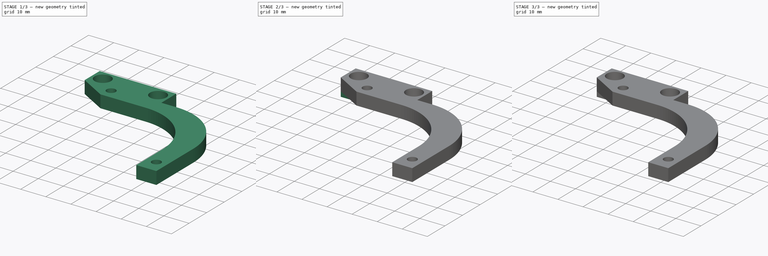
[diagram: build sequence overview — one tinted view per stage of 3, left to right]
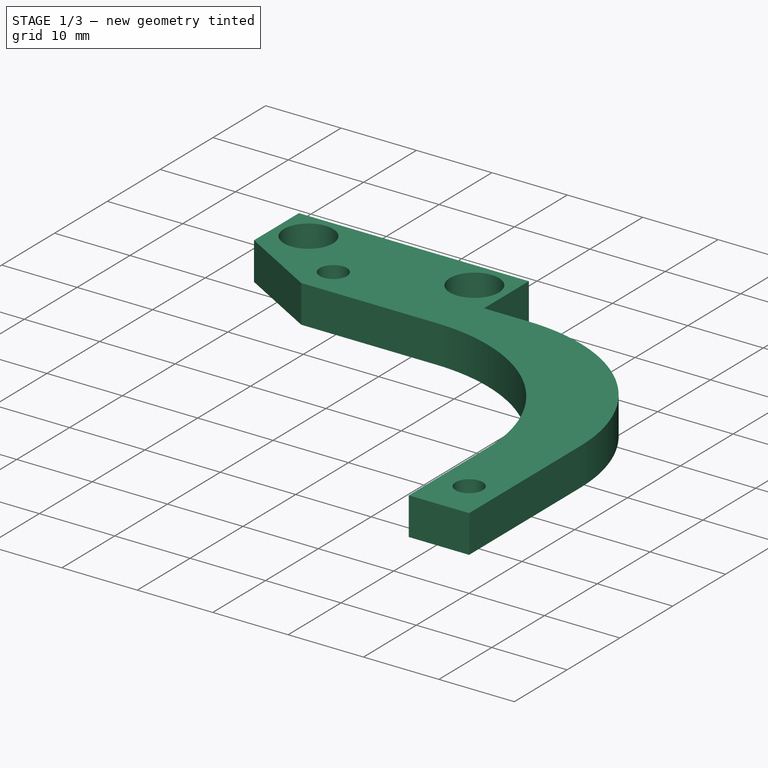
[diagram: stage 1 of 3 — iso view after this stage's code; geometry added in this stage tinted green]
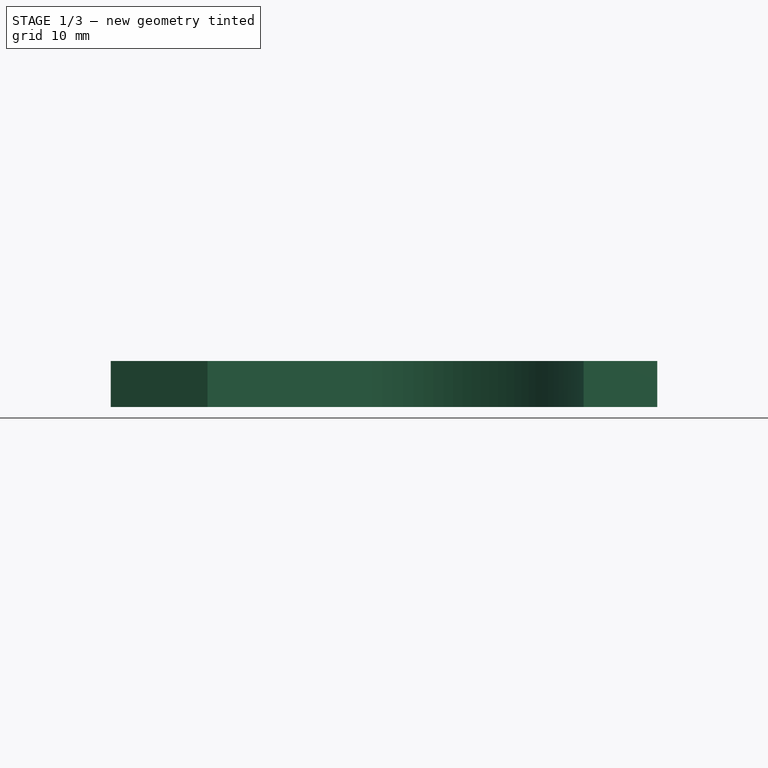
[diagram: stage 1 of 3 — front view after this stage's code; geometry added in this stage tinted green]
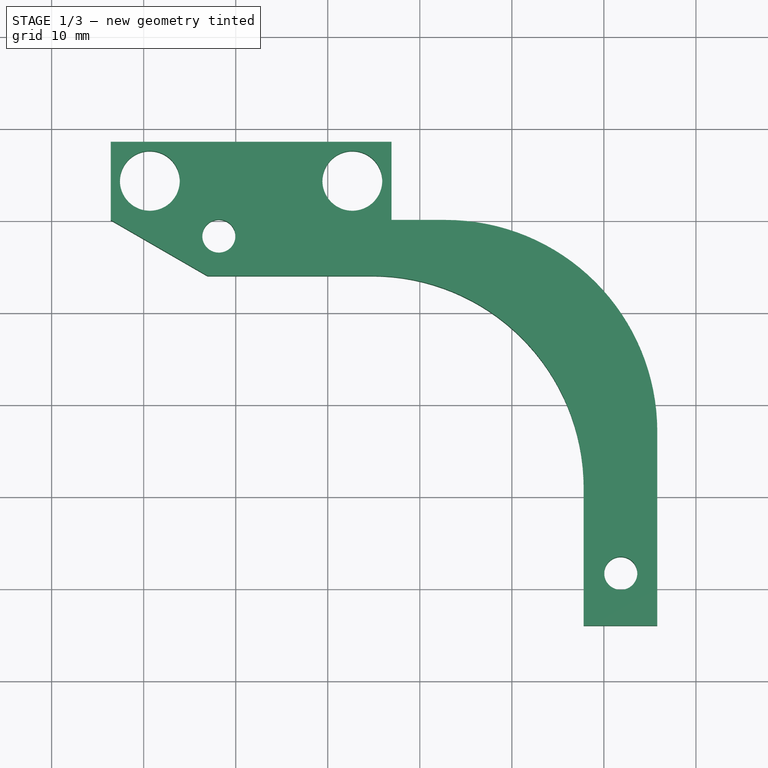
[diagram: stage 1 of 3 — top view after this stage's code; geometry added in this stage tinted green]
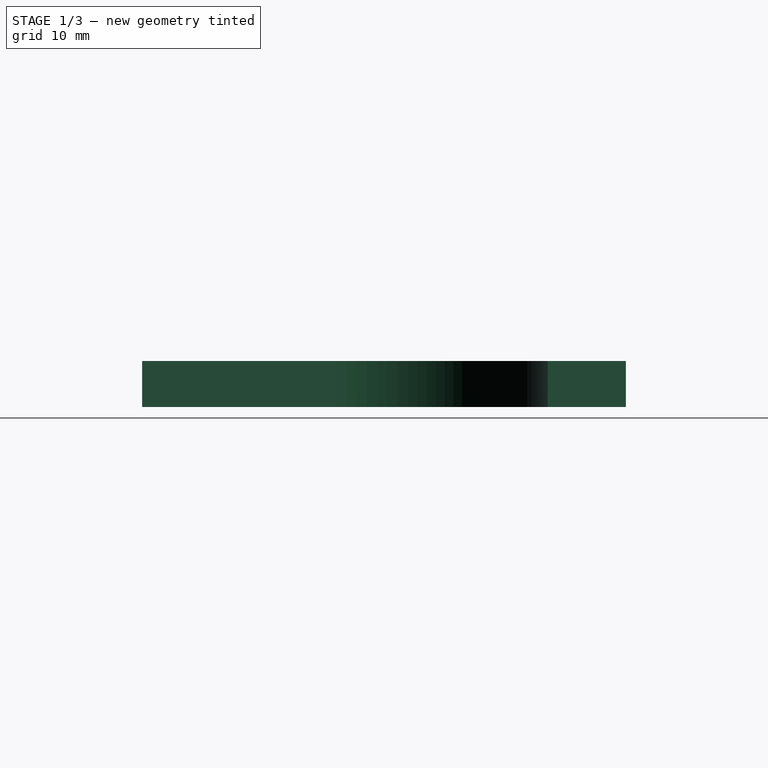
[diagram: stage 1 of 3 — right view after this stage's code; geometry added in this stage tinted green]
FCSTD DOCUMENT  (FreeCAD 0.16R)
Label: fanhold
License: All rights reserved
LicenseURL: http://en.wikipedia.org/wiki/All_rights_reserved
objects: Sketcher::SketchObject×5, PartDesign::Pocket×3, PartDesign::Pad×2, PartDesign::Fillet×1
note: 16 computed .brp shape members not serialized (recipe doc carries the construction recipe); baked Part::Feature solids carry a one-line shape summary decoded from their .brp

FEATURE [Sketcher::SketchObject] Sketch
  sketch-geometry (17):
    g0: LineSegment StartX=-33.5823 StartY=28.5694 StartZ=0 EndX=-3.08227 EndY=28.5694 EndZ=0
    g1: LineSegment StartX=-3.08227 StartY=28.5694 StartZ=0 EndX=-3.08227 EndY=20.0694 EndZ=0
    g2: LineSegment StartX=-33.5823 StartY=20.0694 StartZ=0 EndX=-33.5823 EndY=28.5694 EndZ=0
    g3: Circle [constr] CenterX=0 CenterY=0 CenterZ=0 NormalX=0 NormalY=0 NormalZ=1 Radius=28.5
    g4: LineSegment [constr] StartX=-21.8323 StartY=18.3194 StartZ=0 EndX=21.8323 EndY=-18.3194 EndZ=0
    g5: LineSegment [constr] StartX=-33.5823 StartY=24.3194 StartZ=0 EndX=-3.08227 EndY=24.3194 EndZ=0
    g6: Circle CenterX=-29.3323 CenterY=24.3194 CenterZ=0 NormalX=0 NormalY=0 NormalZ=1 Radius=3.25
    g7: Circle CenterX=-7.33227 CenterY=24.3194 CenterZ=0 NormalX=0 NormalY=0 NormalZ=1 Radius=3.25
    g8: LineSegment [constr] StartX=-18.3323 StartY=44.2943 StartZ=0 EndX=-18.3323 EndY=14.2081 EndZ=0
    g9: Circle CenterX=-21.8323 CenterY=18.3194 CenterZ=0 NormalX=0 NormalY=0 NormalZ=1 Radius=1.8
    g10: Circle CenterX=21.8323 CenterY=-18.3194 CenterZ=0 NormalX=0 NormalY=0 NormalZ=1 Radius=1.8
    g11: LineSegment StartX=-33.5823 StartY=20.0694 StartZ=0 EndX=-23.0697 EndY=14 EndZ=0
    g12: LineSegment StartX=-23.0697 StartY=14 StartZ=0 EndX=17.8 EndY=14 EndZ=0
    g13: LineSegment StartX=17.8 StartY=14 StartZ=0 EndX=17.8 EndY=-24 EndZ=0
    g14: LineSegment StartX=17.8 StartY=-24 StartZ=0 EndX=25.8 EndY=-24 EndZ=0
    g15: LineSegment StartX=25.8 StartY=-24 StartZ=0 EndX=25.8 EndY=20.0694 EndZ=0
    g16: LineSegment StartX=25.8 StartY=20.0694 StartZ=0 EndX=-3.08227 EndY=20.0694 EndZ=0
  constraints (48):
    c: Horizontal(g0)
    c: Coincident(g0,g1)
    c: Vertical(g1)
    c: Coincident(g2,g0)
    c: Vertical(g2)
    c: DistanceY(g2,g2) = 8.5
    c: Equal(g2,g1)
    c: DistanceX(g0,g0) = 30.5
    c: Coincident(g3,g-1)
    c: Radius(g3) = 28.5
    c: PointOnObject(g4,g3)
    c: PointOnObject(g4,g3)
    c: PointOnObject(g-1,g4)
    c: Angle(g4) = -0.698132
    c: PointOnObject(g5,g2)
    c: PointOnObject(g5,g1)
    c: Symmetric(g0,g1,g5)
    c: PointOnObject(g6,g5)
    c: PointOnObject(g7,g5)
    c: Distance(g6,g7) = 22
    c: Vertical(g8)
    c: Symmetric(g0,g0,g8)
    c: Symmetric(g6,g7,g8)
    c: Equal(g6,g7)
    c: Radius(g7) = 3.25
    c: DistanceX(g6,g4) = 7.5
    c: DistanceY(g4,g6) = 6
    c: Coincident(g9,g4)
    c: Radius(g9) = 1.8
    c: Coincident(g10,g4)
    c: Equal(g10,g9)
    c: Coincident(g2,g11)
    c: Coincident(g11,g12)
    c: Horizontal(g12)
    c: Coincident(g12,g13)
    c: Vertical(g13)
    c: Coincident(g13,g14)
    c: Horizontal(g14)
    c: Coincident(g14,g15)
    c: Vertical(g15)
    c: Coincident(g15,g16)
    c: Coincident(g16,g1)
    c: Horizontal(g16)
    c: DistanceX(g14,g14) = 8
    c: DistanceX(g-1,g13) = 17.8
    c: DistanceY(g13,g13) = 38
    c: Angle(g11) = -0.523599
    c: DistanceY(g12) = 14
FEATURE [PartDesign::Pad] Pad
  Length = 5
  Length2 = 100
  Sketch = -> Sketch
  Type = 0
FEATURE [PartDesign::Fillet] Fillet
  Base = -> Pad [Edge14,Edge23]
  Radius = 23
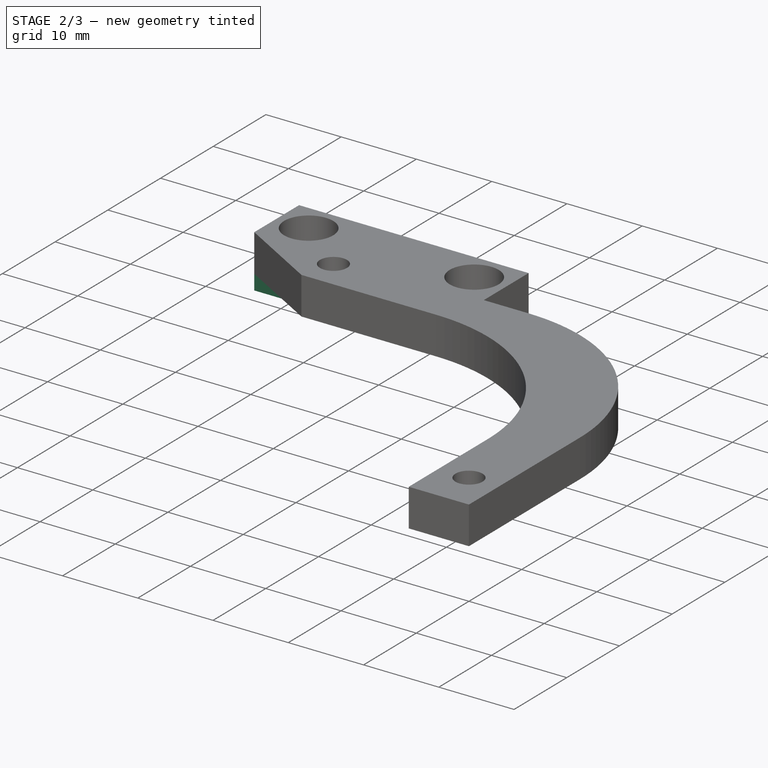
[diagram: stage 2 of 3 — iso view after this stage's code; geometry added in this stage tinted green]
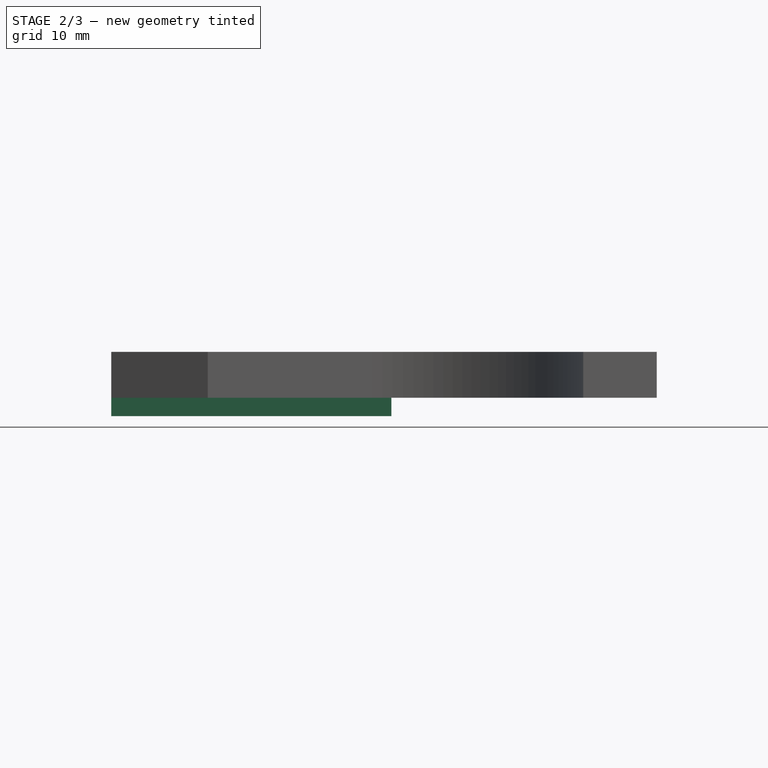
[diagram: stage 2 of 3 — front view after this stage's code; geometry added in this stage tinted green]
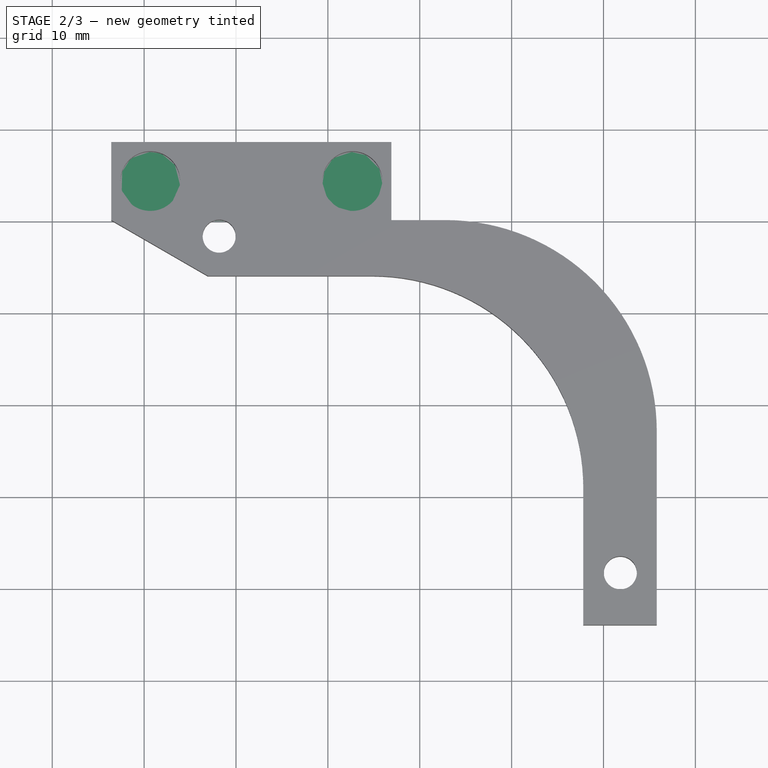
[diagram: stage 2 of 3 — top view after this stage's code; geometry added in this stage tinted green]
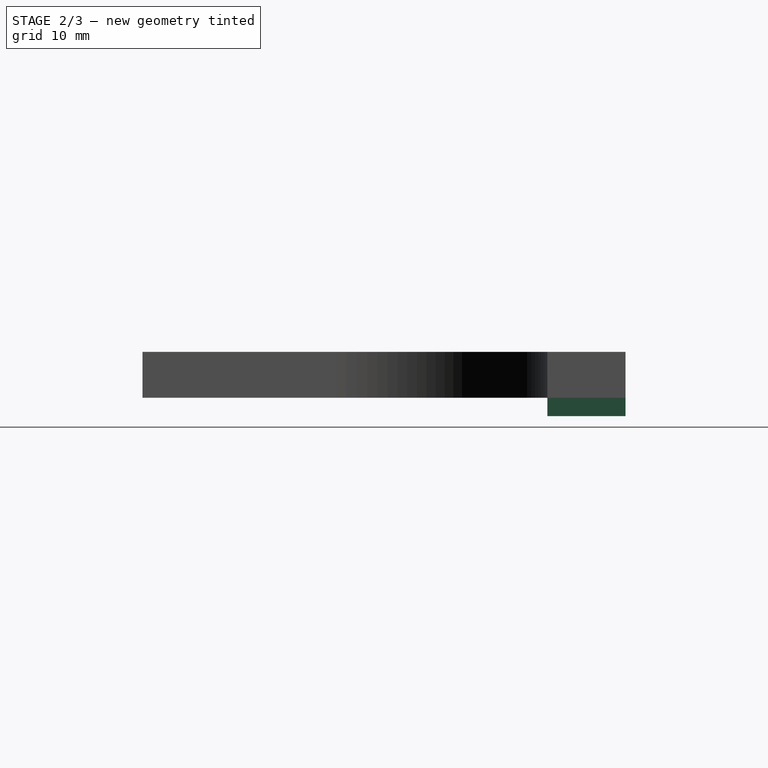
[diagram: stage 2 of 3 — right view after this stage's code; geometry added in this stage tinted green]
FEATURE [Sketcher::SketchObject] Sketch001
  ExternalGeometry = -> [Fillet]
  Placement = pos=(0,0,0) rot=(1,0,0;3.14159rad)
  Support = -> Fillet [Face2]
  sketch-geometry (4):
    g0: LineSegment StartX=-33.5823 StartY=-20.0694 StartZ=0 EndX=-3.08227 EndY=-20.0694 EndZ=0
    g1: LineSegment StartX=-3.08227 StartY=-20.0694 StartZ=0 EndX=-3.08227 EndY=-28.5694 EndZ=0
    g2: LineSegment StartX=-3.08227 StartY=-28.5694 StartZ=0 EndX=-33.5823 EndY=-28.5694 EndZ=0
    g3: LineSegment StartX=-33.5823 StartY=-28.5694 StartZ=0 EndX=-33.5823 EndY=-20.0694 EndZ=0
  constraints (10):
    c: Coincident(g0,g1)
    c: Coincident(g1,g2)
    c: Coincident(g2,g3)
    c: Coincident(g3,g0)
    c: Horizontal(g0)
    c: Horizontal(g2)
    c: Vertical(g1)
    c: Vertical(g3)
    c: Coincident(g0,g-4)
    c: Coincident(g1,g-5)
FEATURE [PartDesign::Pad] Pad001
  Length = 2
  Length2 = 100
  Sketch = -> Sketch001
  Type = 0
FEATURE [Sketcher::SketchObject] Sketch002
  ExternalGeometry = -> [Pad001]
  Placement = pos=(0,0,-2) rot=(1,0,0;3.14159rad)
  Support = -> Pad001 [Face1]
  sketch-geometry (2):
    g0: Circle CenterX=-29.3323 CenterY=-24.3194 CenterZ=0 NormalX=0 NormalY=0 NormalZ=1 Radius=1.6
    g1: Circle CenterX=-7.33227 CenterY=-24.3194 CenterZ=0 NormalX=0 NormalY=0 NormalZ=1 Radius=1.6
  constraints (4):
    c: Coincident(g0,g-6)
    c: Coincident(g1,g-5)
    c: Radius(g0) = 1.6
    c: Equal(g0,g1)
FEATURE [PartDesign::Pocket] Pocket
  Length = 1.75
  Sketch = -> Sketch002
  Type = 0
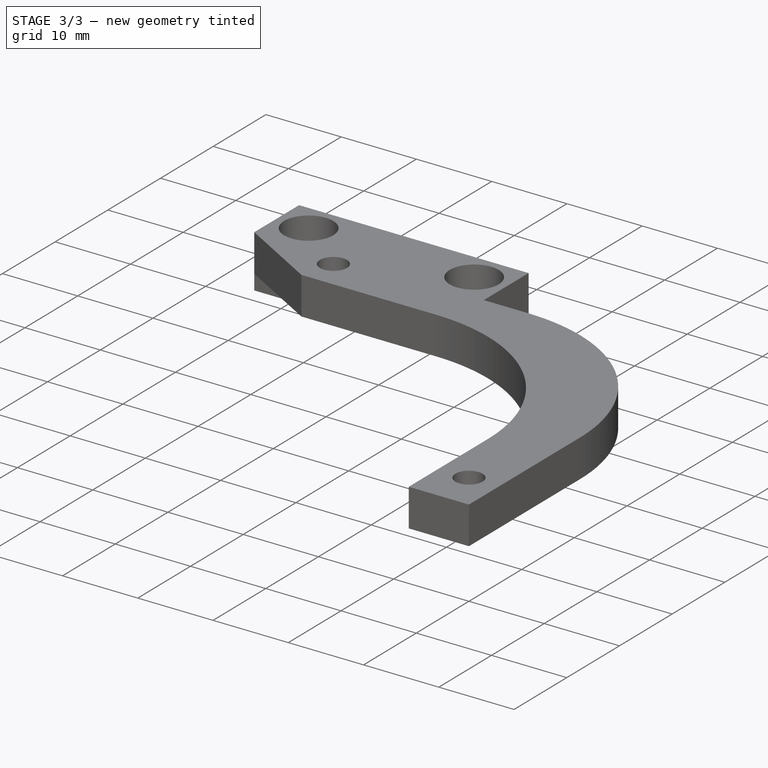
[diagram: stage 3 of 3 — iso view after this stage's code; geometry added in this stage tinted green]
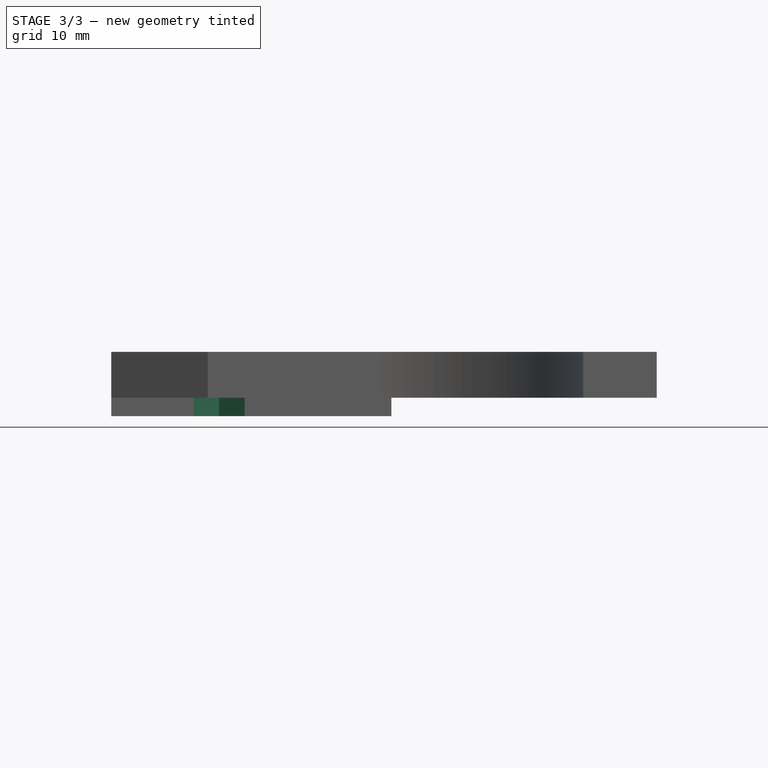
[diagram: stage 3 of 3 — front view after this stage's code; geometry added in this stage tinted green]
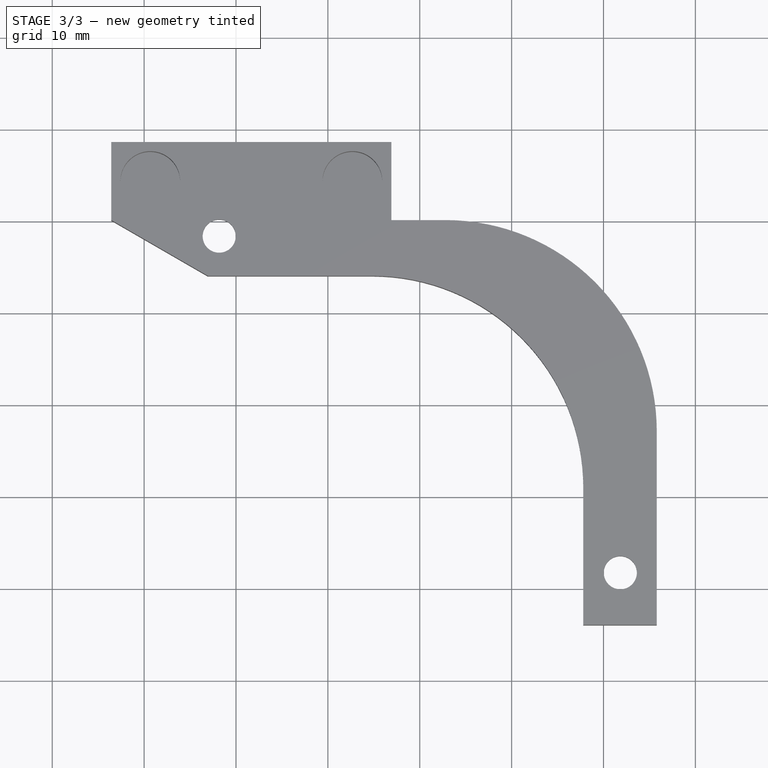
[diagram: stage 3 of 3 — top view after this stage's code; geometry added in this stage tinted green]
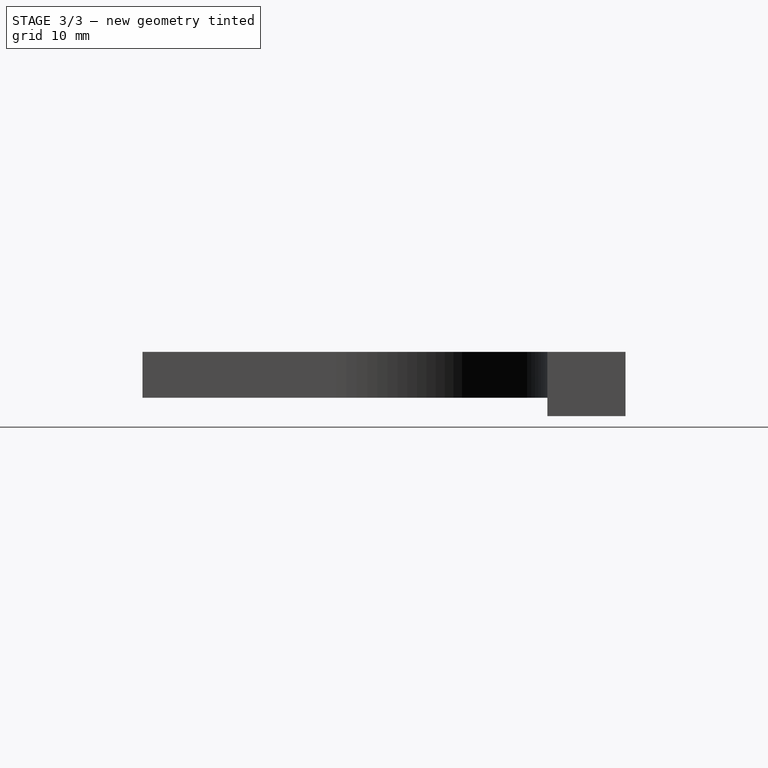
[diagram: stage 3 of 3 — right view after this stage's code; geometry added in this stage tinted green]
FEATURE [Sketcher::SketchObject] Sketch003
  ExternalGeometry = -> [Pocket]
  Placement = pos=(0,0,0) rot=(1,0,0;3.14159rad)
  Support = -> Pocket [Face8]
  sketch-geometry (7):
    g0: LineSegment StartX=24.7335 StartY=16.6444 StartZ=0 EndX=24.7335 EndY=19.9944 EndZ=0
    g1: LineSegment StartX=24.7335 StartY=19.9944 StartZ=0 EndX=21.8323 EndY=21.6694 EndZ=0
    g2: LineSegment StartX=21.8323 StartY=21.6694 StartZ=0 EndX=18.9311 EndY=19.9944 EndZ=0
    g3: LineSegment StartX=18.9311 StartY=19.9944 StartZ=0 EndX=18.9311 EndY=16.6444 EndZ=0
    g4: LineSegment StartX=18.9311 StartY=16.6444 StartZ=0 EndX=21.8323 EndY=14.9694 EndZ=0
    g5: LineSegment StartX=21.8323 StartY=14.9694 StartZ=0 EndX=24.7335 EndY=16.6444 EndZ=0
    g6: Circle [constr] CenterX=21.8323 CenterY=18.3194 CenterZ=0 NormalX=0 NormalY=0 NormalZ=1 Radius=3.35
  constraints (16):
    c: Coincident(g0,g1)
    c: Coincident(g1,g2)
    c: Coincident(g2,g3)
    c: Coincident(g3,g4)
    c: Coincident(g4,g5)
    c: Coincident(g5,g0)
    c: Equal(g0, g1-g5) x5
    c: PointOnObject(g0,g6)
    c: PointOnObject(g1,g6)
    c: PointOnObject(g2,g6)
    c: PointOnObject(g3,g6)
    c: PointOnObject(g4,g6)
    c: PointOnObject(g5,g6)
    c: Coincident(g6,g-3)
    c: Vertical(g0)
    c: Radius(g6) = 3.35
FEATURE [PartDesign::Pocket] Pocket001
  Length = 3
  Sketch = -> Sketch003
  Type = 0
FEATURE [Sketcher::SketchObject] Sketch004
  ExternalGeometry = -> [Pocket001]
  Placement = pos=(0,0,-2) rot=(1,0,0;3.14159rad)
  Support = -> Pocket001 [Face1]
  sketch-geometry (7):
    g0: LineSegment StartX=-18.9311 StartY=-19.9944 StartZ=0 EndX=-18.9311 EndY=-16.6444 EndZ=0
    g1: LineSegment StartX=-18.9311 StartY=-16.6444 StartZ=0 EndX=-21.8323 EndY=-14.9694 EndZ=0
    g2: LineSegment StartX=-21.8323 StartY=-14.9694 StartZ=0 EndX=-24.7335 EndY=-16.6444 EndZ=0
    g3: LineSegment StartX=-24.7335 StartY=-16.6444 StartZ=0 EndX=-24.7335 EndY=-19.9944 EndZ=0
    g4: LineSegment StartX=-24.7335 StartY=-19.9944 StartZ=0 EndX=-21.8323 EndY=-21.6694 EndZ=0
    g5: LineSegment StartX=-21.8323 StartY=-21.6694 StartZ=0 EndX=-18.9311 EndY=-19.9944 EndZ=0
    g6: Circle [constr] CenterX=-21.8323 CenterY=-18.3194 CenterZ=0 NormalX=0 NormalY=0 NormalZ=1 Radius=3.35
  constraints (16):
    c: Coincident(g0,g1)
    c: Coincident(g1,g2)
    c: Coincident(g2,g3)
    c: Coincident(g3,g4)
    c: Coincident(g4,g5)
    c: Coincident(g5,g0)
    c: Equal(g0, g1-g5) x5
    c: PointOnObject(g0,g6)
    c: PointOnObject(g1,g6)
    c: PointOnObject(g2,g6)
    c: PointOnObject(g3,g6)
    c: PointOnObject(g4,g6)
    c: PointOnObject(g5,g6)
    c: Coincident(g6,g-3)
    c: Vertical(g0)
    c: Radius(g6) = 3.35
FEATURE [PartDesign::Pocket] Pocket002
  Length = 5
  Sketch = -> Sketch004
  Type = 0
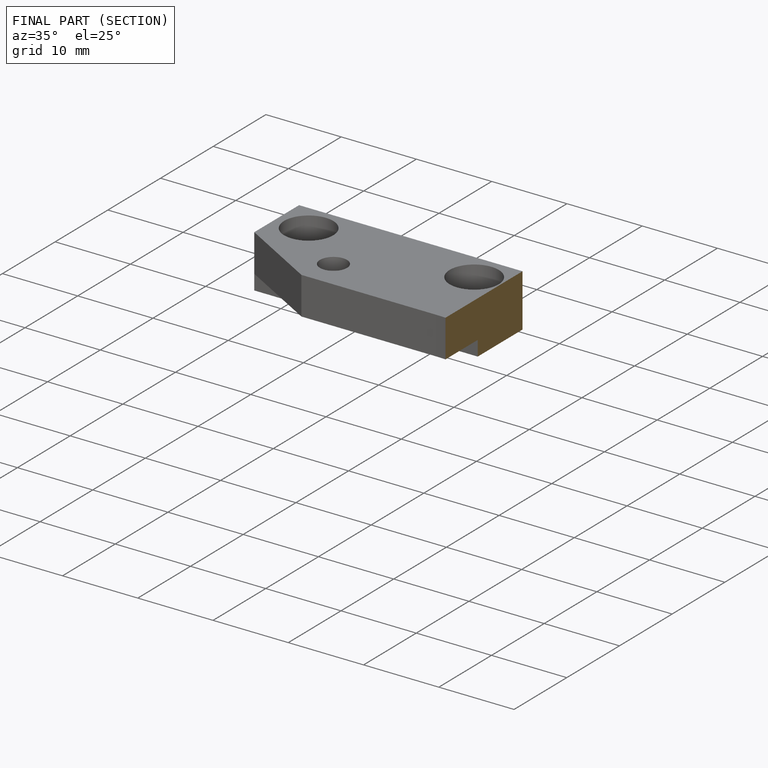
[diagram: finished part — half-section view (interior)]
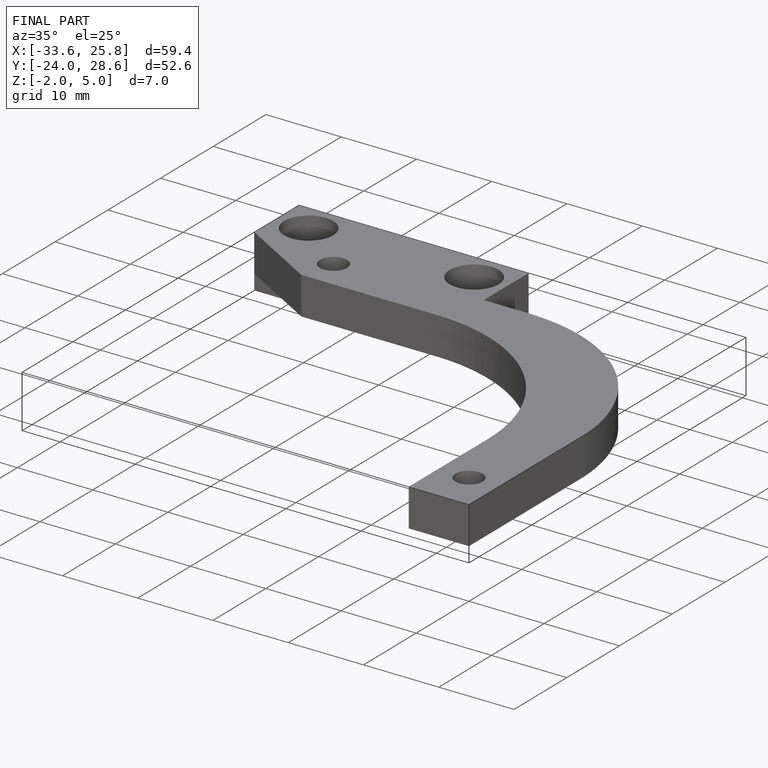
[diagram: finished part — iso view with bounding-box wireframe]
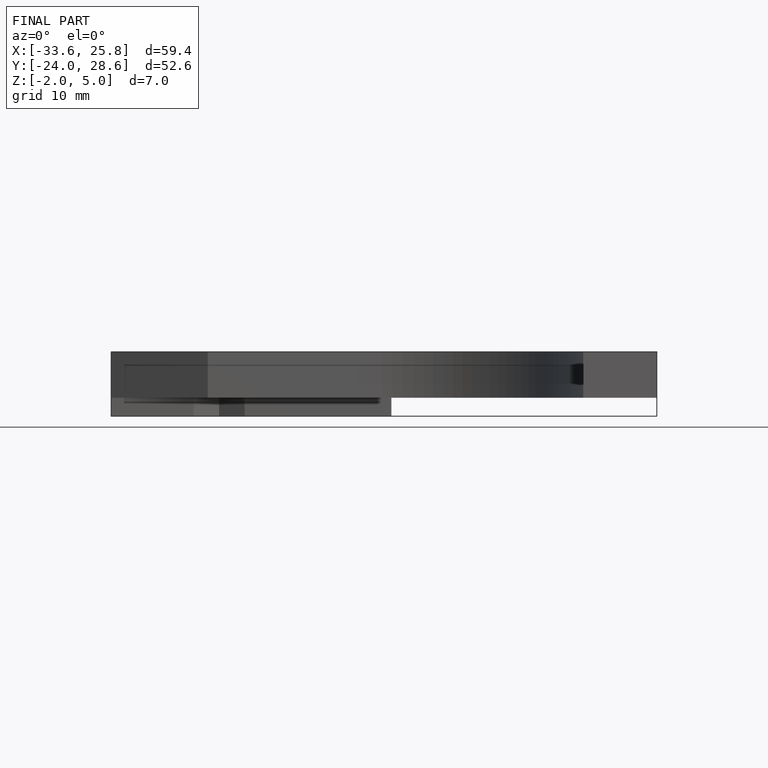
[diagram: finished part — front view with bounding-box wireframe]
